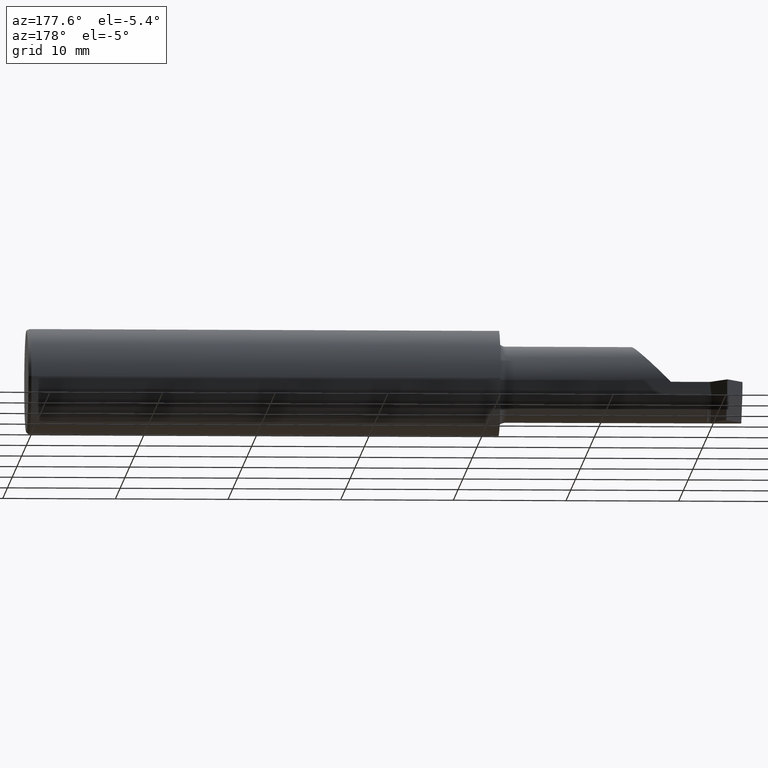
[diagram: clean part render]
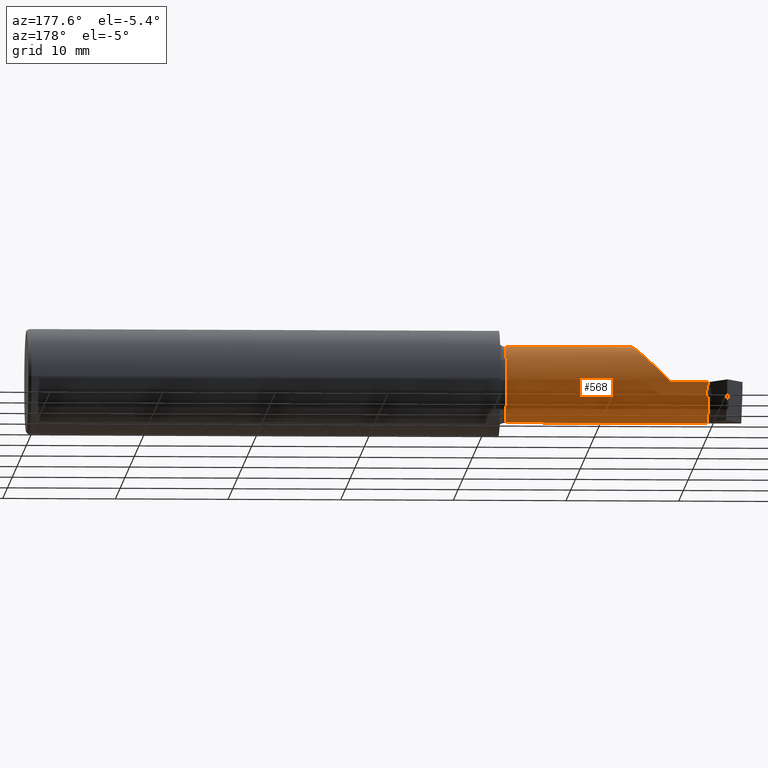
[diagram: same view with one face highlighted and labeled with its STEP entity id]
A machine part, auxiliary view. The second image highlights one B-rep face of the part: STEP entity #568.
In plain terms, the highlighted cylindrical surface (partial cylindrical patch) has radius 3.3782 mm, axis along (-1, 0, -0).
Its self-contained STEP definition (entity closure, byte-faithful):
#10 = ORIENTED_EDGE ( 'NONE', *, *, #363, .T. ) ;
#16 = CIRCLE ( 'NONE', #707, 0.1330000000000000349 ) ;
#20 = VERTEX_POINT ( 'NONE', #459 ) ;
#32 = CARTESIAN_POINT ( 'NONE',  ( -2.370501519666968981, 0.06407714550917324725, -0.05196724008907802062 ) ) ;
#67 = CARTESIAN_POINT ( 'NONE',  ( -2.377429102214748902, 0.07465000000000018843, -0.01791708402103016351 ) ) ;
#72 = CARTESIAN_POINT ( 'NONE',  ( -1.675000000000000044, -0.05835000000000011705, 0.000000000000000000 ) ) ;
#99 = ORIENTED_EDGE ( 'NONE', *, *, #157, .T. ) ;
#109 = DIRECTION ( 'NONE',  ( 1.000000000000000000, 1.553500558300393113E-17, -0.000000000000000000 ) ) ;
#112 = DIRECTION ( 'NONE',  ( -1.000000000000000000, 9.108622265535208572E-17, -0.000000000000000000 ) ) ;
#120 = CARTESIAN_POINT ( 'NONE',  ( -2.381074374157795326, -0.05835000000000015175, -0.1330000000000000349 ) ) ;
#128 = VECTOR ( 'NONE', #294, 39.37007874015748143 ) ;
#157 = EDGE_CURVE ( 'NONE', #599, #858, #592, .T. ) ;
#189 = ORIENTED_EDGE ( 'NONE', *, *, #706, .T. ) ;
#209 = ORIENTED_EDGE ( 'NONE', *, *, #386, .T. ) ;
#210 = VECTOR ( 'NONE', #516, 39.37007874015748143 ) ;
#215 = VERTEX_POINT ( 'NONE', #802 ) ;
#227 = AXIS2_PLACEMENT_3D ( 'NONE', #389, #109, #856 ) ;
#238 = CARTESIAN_POINT ( 'NONE',  ( -2.028037187078897574, -0.1783697086546688348, -0.05730854678360366994 ) ) ;
#243 = CYLINDRICAL_SURFACE ( 'NONE', #379, 0.1330000000000002292 ) ;
#255 = EDGE_CURVE ( 'NONE', #686, #215, #16, .T. ) ;
#265 = EDGE_CURVE ( 'NONE', #440, #686, #762, .T. ) ;
#274 = CARTESIAN_POINT ( 'NONE',  ( -2.250000000000000000, 0.07465000000000018843, 0.000000000000000000 ) ) ;
#282 = CIRCLE ( 'NONE', #227, 0.1330000000000000071 ) ;
#294 = DIRECTION ( 'NONE',  ( -1.000000000000000000, 9.108622265535208572E-17, -0.000000000000000000 ) ) ;
#310 = ORIENTED_EDGE ( 'NONE', *, *, #682, .F. ) ;
#315 = DIRECTION ( 'NONE',  ( 0.000000000000000000, -1.000000000000000000, 0.000000000000000000 ) ) ;
#318 = EDGE_CURVE ( 'NONE', #599, #424, #807, .T. ) ;
#340 = DIRECTION ( 'NONE',  ( -1.000000000000000000, 9.108622265535208572E-17, -0.000000000000000000 ) ) ;
#346 = AXIS2_PLACEMENT_3D ( 'NONE', #72, #403, #479 ) ;
#352 = CARTESIAN_POINT ( 'NONE',  ( -2.381074374157795326, -0.05835000000000004766, 0.000000000000000000 ) ) ;
#363 = EDGE_CURVE ( 'NONE', #471, #828, #609, .T. ) ;
#368 = LINE ( 'NONE', #120, #210 ) ;
#379 = AXIS2_PLACEMENT_3D ( 'NONE', #441, #112, #315 ) ;
#386 = EDGE_CURVE ( 'NONE', #828, #424, #702, .T. ) ;
#389 = CARTESIAN_POINT ( 'NONE',  ( -2.500000000000000000, -0.05835000000000006154, 0.000000000000000000 ) ) ;
#395 = DIRECTION ( 'NONE',  ( 1.000000000000000000, -9.108622265535208572E-17, 0.000000000000000000 ) ) ;
#403 = DIRECTION ( 'NONE',  ( -1.000000000000000000, 9.108622265535208572E-17, -0.000000000000000000 ) ) ;
#415 = CARTESIAN_POINT ( 'NONE',  ( -2.500000000000000000, 0.07465000000000017455, 0.000000000000000000 ) ) ;
#424 = VERTEX_POINT ( 'NONE', #559 ) ;
#432 = CARTESIAN_POINT ( 'NONE',  ( -2.030319072763994370, -0.1008380660117473987, 0.2196809272360032428 ) ) ;
#438 = CARTESIAN_POINT ( 'NONE',  ( -2.381074374157795326, 0.06407714550917456564, -0.05196724008907338543 ) ) ;
#440 = VERTEX_POINT ( 'NONE', #32 ) ;
#441 = CARTESIAN_POINT ( 'NONE',  ( -2.500000000000000000, -0.05835000000000004072, 0.000000000000000000 ) ) ;
#457 = CARTESIAN_POINT ( 'NONE',  ( -2.500000000000000000, -0.05835000000000015175, -0.1330000000000000349 ) ) ;
#459 = CARTESIAN_POINT ( 'NONE',  ( -2.500000000000000000, -0.1783697086546693900, -0.05730854678360196297 ) ) ;
#471 = VERTEX_POINT ( 'NONE', #635 ) ;
#472 = CARTESIAN_POINT ( 'NONE',  ( -1.675000000000000044, -0.1783697086546690014, -0.05730854678360382953 ) ) ;
#479 = DIRECTION ( 'NONE',  ( 0.000000000000000000, -1.000000000000000000, 0.000000000000000000 ) ) ;
#491 = DIRECTION ( 'NONE',  ( -1.000000000000000000, 9.108622265535208572E-17, -0.000000000000000000 ) ) ;
#503 = ORIENTED_EDGE ( 'NONE', *, *, #318, .F. ) ;
#516 = DIRECTION ( 'NONE',  ( -1.000000000000000000, -1.553500558300393421E-17, -0.000000000000000000 ) ) ;
#523 = ORIENTED_EDGE ( 'NONE', *, *, #265, .F. ) ;
#549 = CARTESIAN_POINT ( 'NONE',  ( -2.250000000000000000, 0.07465000000000018843, 0.000000000000000000 ) ) ;
#559 = CARTESIAN_POINT ( 'NONE',  ( -2.192691453216396358, -0.1783697086546690291, 0.05730854678360299687 ) ) ;
#568 = ADVANCED_FACE ( 'NONE', ( #647 ), #243, .T. ) ;
#582 = VECTOR ( 'NONE', #340, 39.37007874015748143 ) ;
#583 = VECTOR ( 'NONE', #779, 39.37007874015748143 ) ;
#592 = CIRCLE ( 'NONE', #346, 0.1330000000000003957 ) ;
#593 = LINE ( 'NONE', #238, #583 ) ;
#599 = VERTEX_POINT ( 'NONE', #787 ) ;
#609 = LINE ( 'NONE', #415, #795 ) ;
#622 = CARTESIAN_POINT ( 'NONE',  ( -2.500000000000001332, 0.06407714550917283092, -0.05196724008907793041 ) ) ;
#628 = ORIENTED_EDGE ( 'NONE', *, *, #698, .F. ) ;
#635 = CARTESIAN_POINT ( 'NONE',  ( -2.381074374157795326, 0.07464999999999998026, 0.000000000000000000 ) ) ;
#640 = ORIENTED_EDGE ( 'NONE', *, *, #255, .F. ) ;
#647 = FACE_OUTER_BOUND ( 'NONE', #794, .T. ) ;
#669 = CARTESIAN_POINT ( 'NONE',  ( -2.370501519666968981, 0.06407714550917324725, -0.05196724008907802062 ) ) ;
#678 = VERTEX_POINT ( 'NONE', #457 ) ;
#682 = EDGE_CURVE ( 'NONE', #20, #858, #593, .T. ) ;
#686 = VERTEX_POINT ( 'NONE', #438 ) ;
#698 = EDGE_CURVE ( 'NONE', #215, #678, #368, .T. ) ;
#702 =( BOUNDED_CURVE ( )  B_SPLINE_CURVE ( 3, ( #274, #803, #432, #759 ),
 .UNSPECIFIED., .F., .T. ) 
 B_SPLINE_CURVE_WITH_KNOTS ( ( 4, 4 ),
 ( 1.570796326794896558, 4.266908708460873889 ),
 .UNSPECIFIED. ) 
 CURVE ( )  GEOMETRIC_REPRESENTATION_ITEM ( )  RATIONAL_B_SPLINE_CURVE ( ( 1.000000000000000000, 0.4806019281062899329, 0.4806019281062899329, 1.000000000000000000 ) ) 
 REPRESENTATION_ITEM ( '' )  );
#706 = EDGE_CURVE ( 'NONE', #20, #678, #282, .T. ) ;
#707 = AXIS2_PLACEMENT_3D ( 'NONE', #352, #491, #823 ) ;
#729 = ORIENTED_EDGE ( 'NONE', *, *, #770, .F. ) ;
#736 = CARTESIAN_POINT ( 'NONE',  ( -2.028037187078897574, -0.1783697086546688348, 0.05730854678360366994 ) ) ;
#759 = CARTESIAN_POINT ( 'NONE',  ( -2.192691453216396358, -0.1783697086546690291, 0.05730854678360299687 ) ) ;
#762 = LINE ( 'NONE', #622, #128 ) ;
#770 = EDGE_CURVE ( 'NONE', #471, #440, #797, .T. ) ;
#779 = DIRECTION ( 'NONE',  ( 1.000000000000000000, -9.108622265535208572E-17, 0.000000000000000000 ) ) ;
#787 = CARTESIAN_POINT ( 'NONE',  ( -1.675000000000000044, -0.1783697086546690291, 0.05730854678360375321 ) ) ;
#794 = EDGE_LOOP ( 'NONE', ( #729, #10, #209, #503, #99, #310, #189, #628, #640, #523 ) ) ;
#795 = VECTOR ( 'NONE', #395, 39.37007874015748143 ) ;
#797 =( BOUNDED_CURVE ( )  B_SPLINE_CURVE ( 3, ( #805, #67, #864, #669 ),
 .UNSPECIFIED., .F., .F. ) 
 B_SPLINE_CURVE_WITH_KNOTS ( ( 4, 4 ),
 ( 1.570796326794896780, 1.972222054753627773 ),
 .UNSPECIFIED. ) 
 CURVE ( )  GEOMETRIC_REPRESENTATION_ITEM ( )  RATIONAL_B_SPLINE_CURVE ( ( 1.000000000000000000, 0.9866164697472173950, 0.9866164697472173950, 1.000000000000000000 ) ) 
 REPRESENTATION_ITEM ( '' )  );
#802 = CARTESIAN_POINT ( 'NONE',  ( -2.381074374157795326, -0.05835000000000015175, -0.1330000000000000349 ) ) ;
#803 = CARTESIAN_POINT ( 'NONE',  ( -2.070066830337790265, 0.07465000000000007740, 0.1799331696622073207 ) ) ;
#805 = CARTESIAN_POINT ( 'NONE',  ( -2.381074374157795326, 0.07464999999999998026, 0.000000000000000000 ) ) ;
#807 = LINE ( 'NONE', #736, #582 ) ;
#823 = DIRECTION ( 'NONE',  ( 0.000000000000000000, -1.000000000000000000, 0.000000000000000000 ) ) ;
#828 = VERTEX_POINT ( 'NONE', #549 ) ;
#856 = DIRECTION ( 'NONE',  ( 0.000000000000000000, -1.000000000000000000, 0.000000000000000000 ) ) ;
#858 = VERTEX_POINT ( 'NONE', #472 ) ;
#864 = CARTESIAN_POINT ( 'NONE',  ( -2.373857010182697014, 0.07107790796794771770, -0.03547447728800465910 ) ) ;